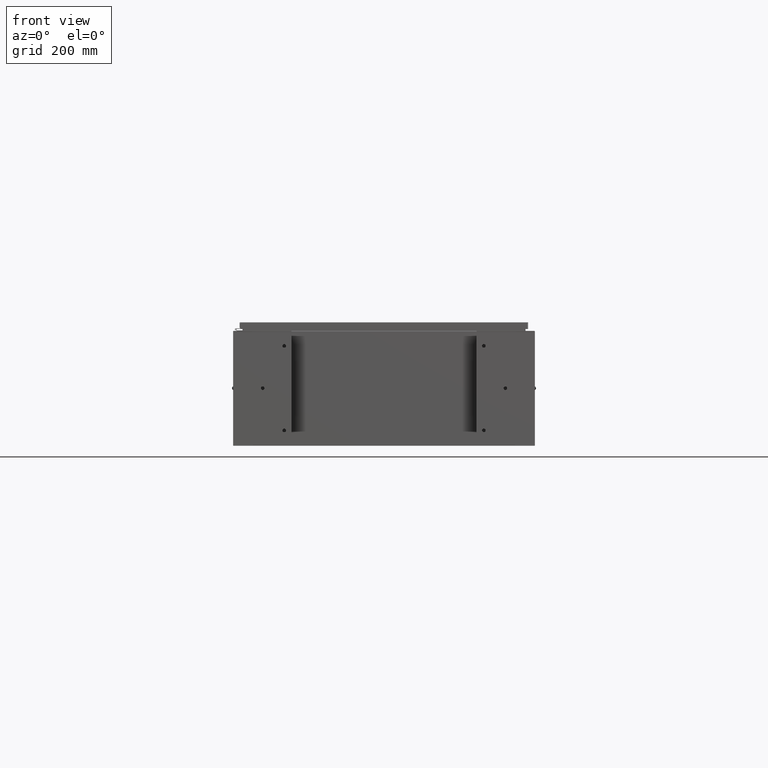
[diagram: clean part render]
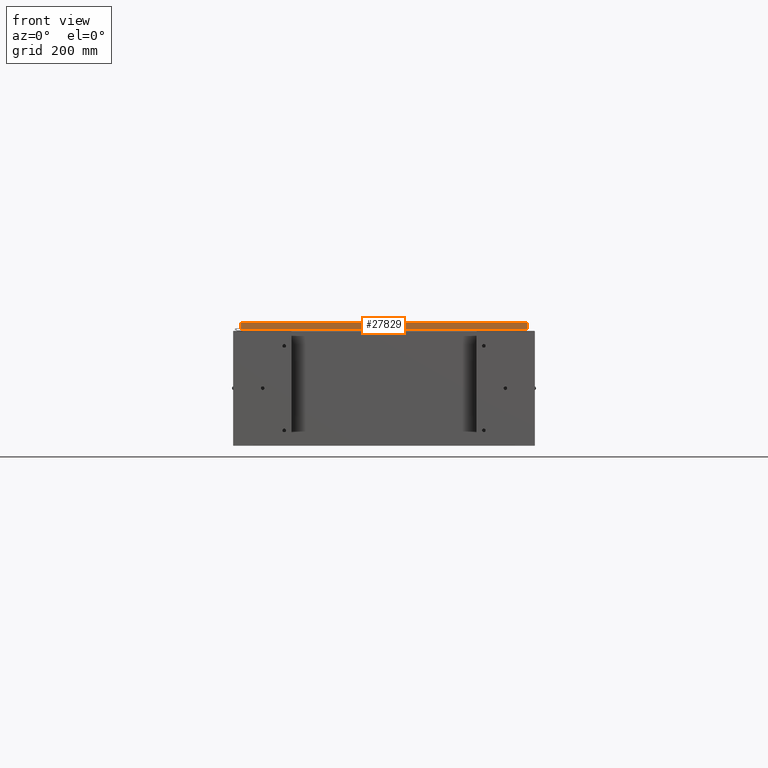
[diagram: same view with one face highlighted and labeled with its STEP entity id]
A machine part, front view. The second image highlights one B-rep face of the part: STEP entity #27829.
In plain terms, the highlighted planar face has unit normal (-0, 1, -0).
Its self-contained STEP definition (entity closure, byte-faithful):
#1287 = LINE ( 'NONE', #66096, #25279 ) ;
#3567 = DIRECTION ( 'NONE',  ( -6.202179162391781100E-031, 1.000000000000000000, -5.064839849203732200E-015 ) ) ;
#5970 = DIRECTION ( 'NONE',  ( 0.0000000000000000000, -5.064839849203732200E-015, -1.000000000000000000 ) ) ;
#6036 = CARTESIAN_POINT ( 'NONE',  ( 20.07800000000000300, -35.09400000000000100, -0.08769999999999550400 ) ) ;
#7304 = FACE_OUTER_BOUND ( 'NONE', #20612, .T. ) ;
#7410 = CARTESIAN_POINT ( 'NONE',  ( 20.07800000000000300, -35.09400000000000800, -0.9376999999999997600 ) ) ;
#7722 = CARTESIAN_POINT ( 'NONE',  ( 19.98915786437626700, -35.09400000000000100, -0.07469999999999962800 ) ) ;
#13187 = EDGE_CURVE ( 'NONE', #49478, #54022, #38118, .T. ) ;
#20612 = EDGE_LOOP ( 'NONE', ( #47594, #36598, #58107, #35853 ) ) ;
#22730 = LINE ( 'NONE', #6036, #35622 ) ;
#25279 = VECTOR ( 'NONE', #5970, 39.37007874015748100 ) ;
#27829 = ADVANCED_FACE ( 'NONE', ( #7304 ), #30875, .F. ) ;
#30464 = VERTEX_POINT ( 'NONE', #71092 ) ;
#30875 = PLANE ( 'NONE',  #33664 ) ;
#32215 = EDGE_CURVE ( 'NONE', #30464, #49478, #22730, .T. ) ;
#33664 = AXIS2_PLACEMENT_3D ( 'NONE', #69311, #3567, #41861 ) ;
#35622 = VECTOR ( 'NONE', #38859, 39.37007874015748100 ) ;
#35853 = ORIENTED_EDGE ( 'NONE', *, *, #13187, .F. ) ;
#36598 = ORIENTED_EDGE ( 'NONE', *, *, #54329, .T. ) ;
#38118 = LINE ( 'NONE', #7722, #65516 ) ;
#38859 = DIRECTION ( 'NONE',  ( 1.000000000000000000, 6.202179162391782000E-031, -3.205446364406161000E-045 ) ) ;
#39710 = EDGE_CURVE ( 'NONE', #54022, #45577, #70582, .T. ) ;
#41861 = DIRECTION ( 'NONE',  ( 0.0000000000000000000, 5.064839849203732200E-015, 1.000000000000000000 ) ) ;
#45565 = CARTESIAN_POINT ( 'NONE',  ( -19.98915786437627400, -35.09400000000000800, -0.9376999999999948700 ) ) ;
#45577 = VERTEX_POINT ( 'NONE', #45565 ) ;
#47594 = ORIENTED_EDGE ( 'NONE', *, *, #32215, .F. ) ;
#49060 = CARTESIAN_POINT ( 'NONE',  ( 19.98915786437626700, -35.09400000000000100, -0.08769999999999550400 ) ) ;
#49478 = VERTEX_POINT ( 'NONE', #49060 ) ;
#51022 = DIRECTION ( 'NONE',  ( -1.000000000000000000, 8.758115402030108600E-047, 1.224555829414202900E-016 ) ) ;
#54022 = VERTEX_POINT ( 'NONE', #57610 ) ;
#54329 = EDGE_CURVE ( 'NONE', #30464, #45577, #1287, .T. ) ;
#57610 = CARTESIAN_POINT ( 'NONE',  ( 19.98915786437626700, -35.09400000000000800, -0.9376999999999997600 ) ) ;
#58107 = ORIENTED_EDGE ( 'NONE', *, *, #39710, .F. ) ;
#65516 = VECTOR ( 'NONE', #68692, 39.37007874015748100 ) ;
#66096 = CARTESIAN_POINT ( 'NONE',  ( -19.98915786437627400, -35.09400000000000100, 1.780063033239673600E-013 ) ) ;
#68692 = DIRECTION ( 'NONE',  ( -0.0000000000000000000, -5.064839849203732200E-015, -1.000000000000000000 ) ) ;
#68839 = VECTOR ( 'NONE', #51022, 39.37007874015748100 ) ;
#69311 = CARTESIAN_POINT ( 'NONE',  ( 2.176592755249772000E-029, -35.09400000000000100, 1.780063033239673600E-013 ) ) ;
#70582 = LINE ( 'NONE', #7410, #68839 ) ;
#71092 = CARTESIAN_POINT ( 'NONE',  ( -19.98915786437627400, -35.09400000000000100, -0.08769999999999550400 ) ) ;